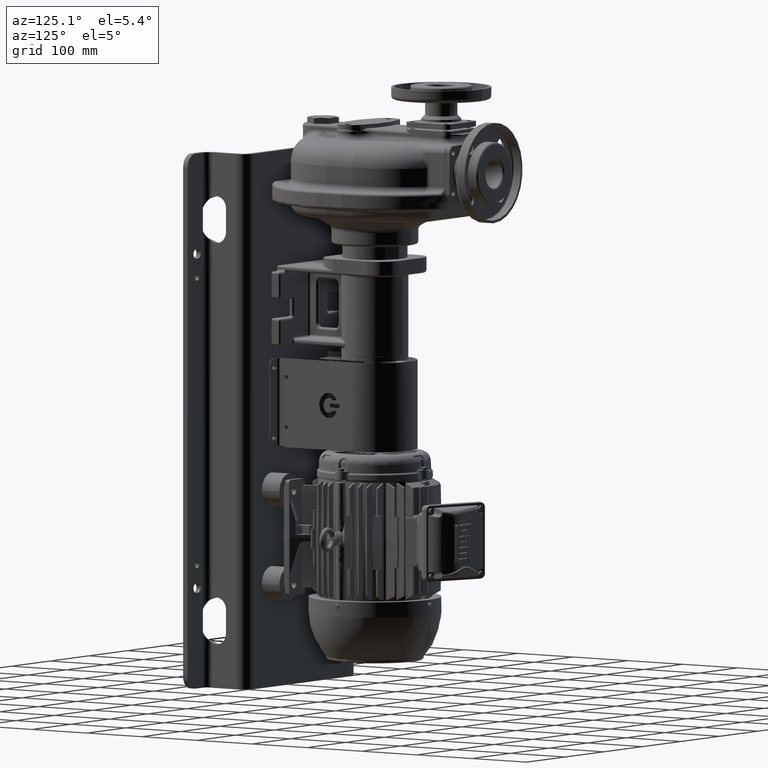
[diagram: clean part render]
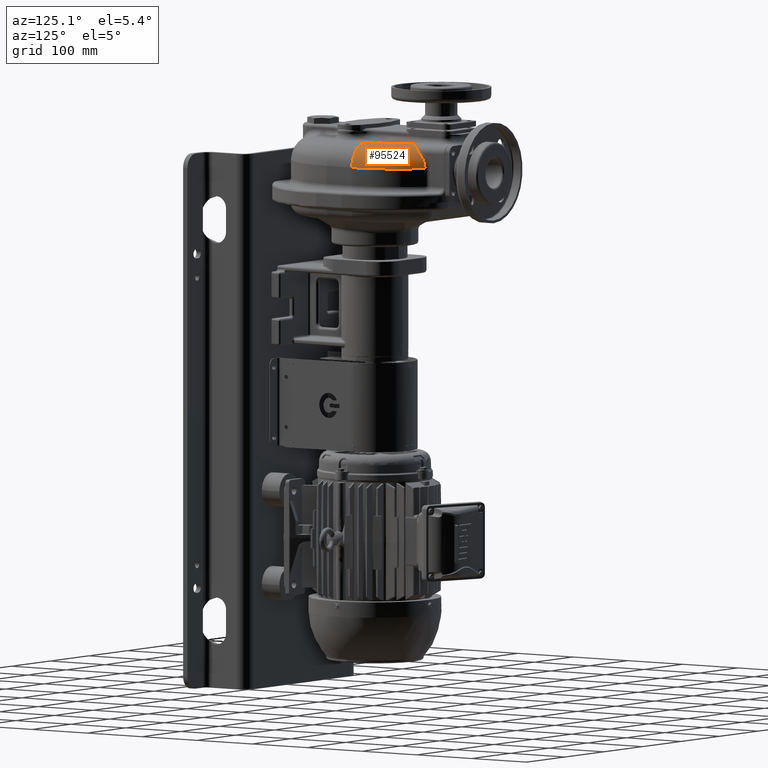
[diagram: same view with one face highlighted and labeled with its STEP entity id]
A machine part, auxiliary view. The second image highlights one B-rep face of the part: STEP entity #95524.
In plain terms, the highlighted toroidal blend (fillet) surface has major radius 87 mm and minor (blend) radius 35 mm.
Its self-contained STEP definition (entity closure, byte-faithful):
#29490=CARTESIAN_POINT('',(9.E0,1.82E2,1.895E2));
#29491=DIRECTION('',(0.E0,0.E0,1.E0));
#29492=DIRECTION('',(1.E0,0.E0,0.E0));
#29493=AXIS2_PLACEMENT_3D('',#29490,#29491,#29492);
#29926=CARTESIAN_POINT('',(6.6E1,2.477267069006E2,2.245E2));
#30023=CARTESIAN_POINT('',(8.177988644389E1,2.730615851660E2,2.082209302325E2));
#30024=CARTESIAN_POINT('',(8.176572503646E1,2.732529956403E2,2.079987049742E2));
#30025=CARTESIAN_POINT('',(8.173807896631E1,2.736276062168E2,2.075519374501E2));
#30026=CARTESIAN_POINT('',(8.169862173913E1,2.741648505966E2,2.068756191367E2));
#30027=CARTESIAN_POINT('',(8.166111802444E1,2.746778553090E2,2.061933440544E2));
#30028=CARTESIAN_POINT('',(8.162552455245E1,2.751669004876E2,2.055054655503E2));
#30029=CARTESIAN_POINT('',(8.159179660369E1,2.756322900323E2,2.048122793833E2));
#30030=CARTESIAN_POINT('',(8.155989320393E1,2.760743002892E2,2.041140833809E2));
#30031=CARTESIAN_POINT('',(8.152977586668E1,2.764931890714E2,2.034111716555E2));
#30032=CARTESIAN_POINT('',(8.150140819209E1,2.768892032136E2,2.027038220613E2));
#30033=CARTESIAN_POINT('',(8.147475636172E1,2.772625703884E2,2.019923112672E2));
#30034=CARTESIAN_POINT('',(8.144978870727E1,2.776135047322E2,2.012769068692E2));
#30035=CARTESIAN_POINT('',(8.142647578600E1,2.779422052522E2,2.005578714325E2));
#30036=CARTESIAN_POINT('',(8.140479024300E1,2.782488572258E2,1.998354612613E2));
#30037=CARTESIAN_POINT('',(8.138470676904E1,2.785336323638E2,1.991099272104E2));
#30038=CARTESIAN_POINT('',(8.136620202524E1,2.787966892663E2,1.983815149173E2));
#30039=CARTESIAN_POINT('',(8.134925463615E1,2.790381737314E2,1.976504650857E2));
#30040=CARTESIAN_POINT('',(8.133384506595E1,2.792582190722E2,1.969170139014E2));
#30041=CARTESIAN_POINT('',(8.131995560254E1,2.794569463538E2,1.961813933371E2));
#30042=CARTESIAN_POINT('',(8.130757033024E1,2.796344645980E2,1.954438314987E2));
#30043=CARTESIAN_POINT('',(8.129667509759E1,2.797908709475E2,1.947045529313E2));
#30044=CARTESIAN_POINT('',(8.128725748266E1,2.799262507448E2,1.939637796686E2));
#30045=CARTESIAN_POINT('',(8.127930676589E1,2.800406780992E2,1.932217282747E2));
#30046=CARTESIAN_POINT('',(8.127281393627E1,2.801342145125E2,1.924786206148E2));
#30047=CARTESIAN_POINT('',(8.126777170462E1,2.802069109696E2,1.917346741600E2));
#30048=CARTESIAN_POINT('',(8.126417418642E1,2.802588074966E2,1.909901002314E2));
#30049=CARTESIAN_POINT('',(8.126201750824E1,2.802899323140E2,1.902451309850E2));
#30050=CARTESIAN_POINT('',(8.126153847589E1,2.802968466087E2,1.897483558961E2));
#30051=CARTESIAN_POINT('',(8.126153846154E1,2.802968466390E2,1.895E2));
#30053=CARTESIAN_POINT('',(9.6E1,1.82E2,1.895E2));
#30054=DIRECTION('',(0.E0,1.E0,0.E0));
#30055=DIRECTION('',(0.E0,0.E0,1.E0));
#30056=AXIS2_PLACEMENT_3D('',#30053,#30054,#30055);
#30058=CARTESIAN_POINT('',(6.6E1,2.477267069006E2,2.245E2));
#30059=CARTESIAN_POINT('',(6.621581142436E1,2.479546794060E2,2.244999997797E2));
#30060=CARTESIAN_POINT('',(6.664720379503E1,2.484104717065E2,2.244915703394E2));
#30061=CARTESIAN_POINT('',(6.729282530649E1,2.490938084796E2,2.244536879902E2));
#30062=CARTESIAN_POINT('',(6.793559923183E1,2.497762521223E2,2.243906865456E2));
#30063=CARTESIAN_POINT('',(6.857430772536E1,2.504574158821E2,2.243027533886E2));
#30064=CARTESIAN_POINT('',(6.920772840736E1,2.511368898128E2,2.241901407557E2));
#30065=CARTESIAN_POINT('',(6.983468778976E1,2.518142941746E2,2.240531613793E2));
#30066=CARTESIAN_POINT('',(7.045404753581E1,2.524892628561E2,2.238921851758E2));
#30067=CARTESIAN_POINT('',(7.106470716186E1,2.531614440380E2,2.237076367709E2));
#30068=CARTESIAN_POINT('',(7.166561236107E1,2.538305075007E2,2.234999898651E2));
#30069=CARTESIAN_POINT('',(7.225575323740E1,2.544961412813E2,2.232697641219E2));
#30070=CARTESIAN_POINT('',(7.283416614162E1,2.551580524496E2,2.230175212262E2));
#30071=CARTESIAN_POINT('',(7.339993463094E1,2.558159672142E2,2.227438610542E2));
#30072=CARTESIAN_POINT('',(7.395219024859E1,2.564696310728E2,2.224494178599E2));
#30073=CARTESIAN_POINT('',(7.449011292126E1,2.571188087819E2,2.221348565604E2));
#30074=CARTESIAN_POINT('',(7.501293112270E1,2.577632842846E2,2.218008690943E2));
#30075=CARTESIAN_POINT('',(7.551992175707E1,2.584028605552E2,2.214481708932E2));
#30076=CARTESIAN_POINT('',(7.601040981327E1,2.590373593781E2,2.210774974712E2));
#30077=CARTESIAN_POINT('',(7.648376779988E1,2.596666210668E2,2.206896011486E2));
#30078=CARTESIAN_POINT('',(7.693941497712E1,2.602905041307E2,2.202852479203E2));
#30079=CARTESIAN_POINT('',(7.737681640666E1,2.609088848962E2,2.198652144784E2));
#30080=CARTESIAN_POINT('',(7.779548183840E1,2.615216570888E2,2.194302853950E2));
#30081=CARTESIAN_POINT('',(7.819496444555E1,2.621287313733E2,2.189812504780E2));
#30082=CARTESIAN_POINT('',(7.857485944034E1,2.627300348797E2,2.185189022881E2));
#30083=CARTESIAN_POINT('',(7.893480255409E1,2.633255106691E2,2.180440338584E2));
#30084=CARTESIAN_POINT('',(7.927446843583E1,2.639151171985E2,2.175574365806E2));
#30085=CARTESIAN_POINT('',(7.959356896335E1,2.644988277578E2,2.170598982809E2));
#30086=CARTESIAN_POINT('',(7.989185149217E1,2.650766298927E2,2.165522014780E2));
#30087=CARTESIAN_POINT('',(8.016909704140E1,2.656485247989E2,2.160351218431E2));
#30088=CARTESIAN_POINT('',(8.042511848190E1,2.662145267449E2,2.155094267982E2));
#30089=CARTESIAN_POINT('',(8.065975866444E1,2.667746623739E2,2.149758743900E2));
#30090=CARTESIAN_POINT('',(8.087288850987E1,2.673289701492E2,2.144352122807E2));
#30091=CARTESIAN_POINT('',(8.106440529704E1,2.678775000433E2,2.138881765584E2));
#30092=CARTESIAN_POINT('',(8.123423015790E1,2.684203109673E2,2.133354930480E2));
#30093=CARTESIAN_POINT('',(8.138230671244E1,2.689574703661E2,2.127778767845E2));
#30094=CARTESIAN_POINT('',(8.150860031491E1,2.694890573166E2,2.122160277895E2));
#30095=CARTESIAN_POINT('',(8.161309530415E1,2.700151579369E2,2.116506349813E2));
#30096=CARTESIAN_POINT('',(8.169579438781E1,2.705358711470E2,2.110823692286E2));
#30097=CARTESIAN_POINT('',(8.175671503557E1,2.710512946345E2,2.105118980106E2));
#30098=CARTESIAN_POINT('',(8.179589075401E1,2.715615426904E2,2.099398656365E2));
#30099=CARTESIAN_POINT('',(8.181336737998E1,2.720667353859E2,2.093669042467E2));
#30100=CARTESIAN_POINT('',(8.180920218432E1,2.725669773091E2,2.087936581726E2));
#30101=CARTESIAN_POINT('',(8.179204594197E1,2.728972329893E2,2.084117411026E2));
#30102=CARTESIAN_POINT('',(8.177988644389E1,2.730615851660E2,2.082209302325E2));
#30109=CARTESIAN_POINT('',(9.E0,1.82E2,2.245E2));
#30110=DIRECTION('',(0.E0,0.E0,1.E0));
#30111=DIRECTION('',(1.E0,0.E0,0.E0));
#30112=AXIS2_PLACEMENT_3D('',#30109,#30110,#30111);
#62993=CARTESIAN_POINT('',(9.6E1,1.82E2,2.245E2));
#62995=VERTEX_POINT('',#62993);
#62997=CARTESIAN_POINT('',(1.31E2,1.82E2,1.895E2));
#62999=VERTEX_POINT('',#62997);
#63130=VERTEX_POINT('',#30023);
#63131=VERTEX_POINT('',#30051);
#63134=VERTEX_POINT('',#29926);
#95509=CARTESIAN_POINT('',(9.E0,1.82E2,1.895E2));
#95510=DIRECTION('',(0.E0,0.E0,-1.E0));
#95511=DIRECTION('',(9.999999839713E-1,-1.790459006832E-4,0.E0));
#95512=AXIS2_PLACEMENT_3D('',#95509,#95510,#95511);
#95513=TOROIDAL_SURFACE('',#95512,8.7E1,3.5E1);
#95514=ORIENTED_EDGE('',*,*,#95500,.T.);
#95515=ORIENTED_EDGE('',*,*,#94804,.F.);
#95517=ORIENTED_EDGE('',*,*,#95516,.F.);
#95519=ORIENTED_EDGE('',*,*,#95518,.T.);
#95521=ORIENTED_EDGE('',*,*,#95520,.T.);
#95522=EDGE_LOOP('',(#95514,#95515,#95517,#95519,#95521));
#95523=FACE_OUTER_BOUND('',#95522,.F.);
#95524=ADVANCED_FACE('',(#95523),#95513,.T.);
#29494=CIRCLE('',#29493,1.22E2);
#30052=B_SPLINE_CURVE_WITH_KNOTS('',3,(#30023,#30024,#30025,#30026,#30027,
#30028,#30029,#30030,#30031,#30032,#30033,#30034,#30035,#30036,#30037,#30038,
#30039,#30040,#30041,#30042,#30043,#30044,#30045,#30046,#30047,#30048,#30049,
#30050,#30051),.UNSPECIFIED.,.F.,.F.,(4,1,1,1,1,1,1,1,1,1,1,1,1,1,1,1,1,1,1,1,1,
1,1,1,1,1,4),(0.E0,3.846153846154E-2,7.692307692308E-2,1.153846153846E-1,
1.538461538462E-1,1.923076923077E-1,2.307692307692E-1,2.692307692308E-1,
3.076923076923E-1,3.461538461538E-1,3.846153846154E-1,4.230769230769E-1,
4.615384615385E-1,5.E-1,5.384615384615E-1,5.769230769231E-1,6.153846153846E-1,
6.538461538462E-1,6.923076923077E-1,7.307692307692E-1,7.692307692308E-1,
8.076923076923E-1,8.461538461538E-1,8.846153846154E-1,9.230769230769E-1,
9.615384615385E-1,1.E0),.UNSPECIFIED.);
#30057=CIRCLE('',#30056,3.5E1);
#30103=B_SPLINE_CURVE_WITH_KNOTS('',3,(#30058,#30059,#30060,#30061,#30062,
#30063,#30064,#30065,#30066,#30067,#30068,#30069,#30070,#30071,#30072,#30073,
#30074,#30075,#30076,#30077,#30078,#30079,#30080,#30081,#30082,#30083,#30084,
#30085,#30086,#30087,#30088,#30089,#30090,#30091,#30092,#30093,#30094,#30095,
#30096,#30097,#30098,#30099,#30100,#30101,#30102),.UNSPECIFIED.,.F.,.F.,(4,1,1,
1,1,1,1,1,1,1,1,1,1,1,1,1,1,1,1,1,1,1,1,1,1,1,1,1,1,1,1,1,1,1,1,1,1,1,1,1,1,1,
4),(0.E0,2.380952380952E-2,4.761904761905E-2,7.142857142857E-2,
9.523809523810E-2,1.190476190476E-1,1.428571428571E-1,1.666666666667E-1,
1.904761904762E-1,2.142857142857E-1,2.380952380952E-1,2.619047619048E-1,
2.857142857143E-1,3.095238095238E-1,3.333333333333E-1,3.571428571429E-1,
3.809523809524E-1,4.047619047619E-1,4.285714285714E-1,4.523809523810E-1,
4.761904761905E-1,5.E-1,5.238095238095E-1,5.476190476190E-1,5.714285714286E-1,
5.952380952381E-1,6.190476190476E-1,6.428571428571E-1,6.666666666667E-1,
6.904761904762E-1,7.142857142857E-1,7.380952380952E-1,7.619047619048E-1,
7.857142857143E-1,8.095238095238E-1,8.333333333333E-1,8.571428571429E-1,
8.809523809524E-1,9.047619047619E-1,9.285714285714E-1,9.523809523810E-1,
9.761904761905E-1,1.E0),.UNSPECIFIED.);
#30113=CIRCLE('',#30112,8.7E1);
#94804=EDGE_CURVE('',#62999,#63131,#29494,.T.);
#95500=EDGE_CURVE('',#63130,#63131,#30052,.T.);
#95516=EDGE_CURVE('',#62995,#62999,#30057,.T.);
#95518=EDGE_CURVE('',#62995,#63134,#30113,.T.);
#95520=EDGE_CURVE('',#63134,#63130,#30103,.T.);